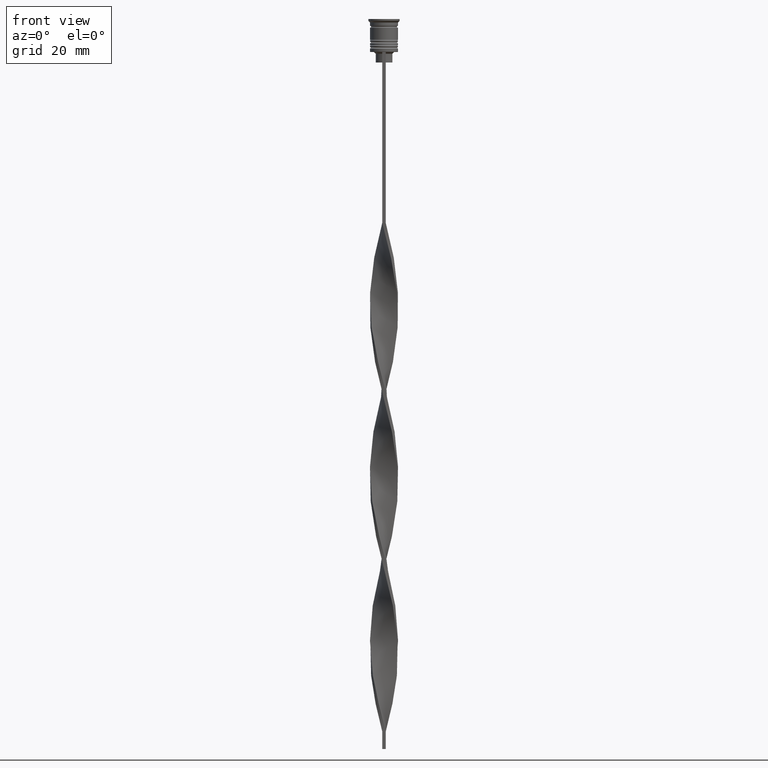
[diagram: clean part render]
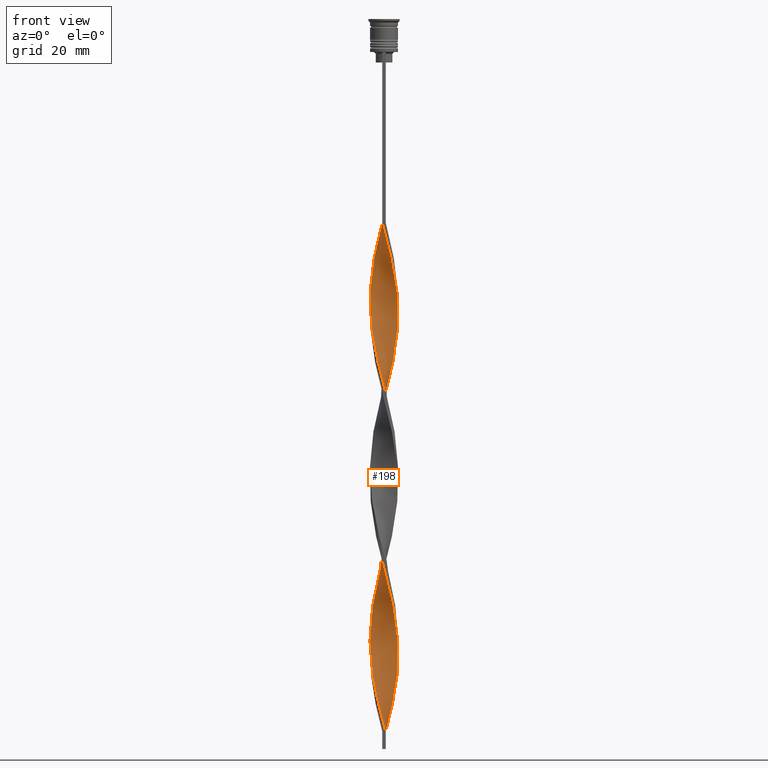
[diagram: same view with one face highlighted and labeled with its STEP entity id]
A machine part, front view. The second image highlights one B-rep face of the part: STEP entity #198.
In plain terms, the highlighted face is a freeform B-spline surface patch.
Its self-contained STEP definition (entity closure, byte-faithful):
#1 =( BOUNDED_CURVE ( )  B_SPLINE_CURVE ( 2, ( #1015, #1078, #424, #3131, #3742, #754, #3422, #1360, #2228, #3109, #780, #3500, #999, #379, #1639, #1041, #2531, #3458, #1970, #1655, #86, #3723, #405, #439, #121, #2849, #2569, #1621, #1598, #2213, #1380, #2832, #723, #2870, #106, #739, #1321, #3443, #145, #3764, #1953, #1336, #2586, #1935, #3785, #3150, #2248, #2546, #3170, #1056, #162, #2266, #3477, #3189, #3804, #465, #1680, #2890, #2287, #1765, #3247, #242, #1447, #1484, #2649, #1703, #1163, #2631, #3228, #182, #2378, #3276, #2332, #3540, #2977, #816, #2061, #3866, #554, #2695, #2079, #3522, #1400, #1461, #203, #3211, #1137, #228, #572, #2349, #3561, #485, #3848, #1750, #1426, #841, #2913, #2015, #2670, #3883, #1118, #798, #2036 ),
 .UNSPECIFIED., .F., .T. ) 
 B_SPLINE_CURVE_WITH_KNOTS ( ( 3, 2, 2, 2, 2, 2, 2, 2, 2, 2, 2, 2, 2, 2, 2, 2, 2, 2, 2, 2, 2, 2, 2, 2, 2, 2, 2, 2, 2, 2, 2, 2, 2, 2, 2, 2, 2, 2, 2, 2, 2, 2, 2, 2, 2, 2, 2, 2, 2, 2, 2, 3 ),
 ( 0.000000000000000000, 0.01470588235294117453, 0.02941176470588234906, 0.04411764705882353227, 0.05882352941176469813, 0.07352941176470588480, 0.08823529411764706454, 0.1029411764705882443, 0.1176470588235293963, 0.1323529411764705899, 0.1470588235294117696, 0.1617647058823529493, 0.1764705882352941291, 0.1911764705882352811, 0.2058823529411764885, 0.2205882352941176405, 0.2352941176470587925, 0.2500000000000000000, 0.2647058823529411797, 0.2794117647058823595, 0.2941176470588235392, 0.3088235294117647189, 0.3235294117647058987, 0.3382352941176470229, 0.3529411764705882582, 0.3676470588235294379, 0.3823529411764705621, 0.3970588235294117418, 0.4117647058823529771, 0.4264705882352941013, 0.4411764705882352811, 0.4558823529411764608, 0.4705882352941175850, 0.4852941176470588203, 0.5000000000000000000, 0.5147058823529411242, 0.5294117647058823595, 0.5441176470588234837, 0.5588235294117647189, 0.5735294117647058432, 0.5882352941176470784, 0.6029411764705882026, 0.6176470588235294379, 0.6323529411764705621, 0.6470588235294117974, 0.6617647058823529216, 0.6764705882352940458, 0.6911764705882351700, 0.7058823529411765163, 0.7205882352941176405, 0.7352941176470588758, 0.7500000000000000000 ),
 .UNSPECIFIED. ) 
 CURVE ( )  GEOMETRIC_REPRESENTATION_ITEM ( )  RATIONAL_B_SPLINE_CURVE ( ( 1.000000000000000000, 0.9957341762950344677, 1.000000000000000000, 0.9957341762950344677, 1.000000000000000000, 0.9957341762950344677, 1.000000000000000000, 0.9957341762950344677, 1.000000000000000000, 0.9957341762950344677, 1.000000000000000000, 0.9957341762950344677, 1.000000000000000000, 0.9957341762950344677, 1.000000000000000000, 0.9957341762950344677, 1.000000000000000000, 0.9957341762950344677, 1.000000000000000000, 0.9957341762950344677, 1.000000000000000000, 0.9957341762950344677, 1.000000000000000000, 0.9957341762950344677, 1.000000000000000000, 0.9957341762950344677, 1.000000000000000000, 0.9957341762950344677, 1.000000000000000000, 0.9957341762950344677, 1.000000000000000000, 0.9957341762950344677, 1.000000000000000000, 0.9957341762950344677, 1.000000000000000000, 0.9957341762950344677, 1.000000000000000000, 0.9957341762950344677, 1.000000000000000000, 0.9957341762950344677, 1.000000000000000000, 0.9957341762950344677, 1.000000000000000000, 0.9957341762950344677, 1.000000000000000000, 0.9957341762950344677, 1.000000000000000000, 0.9957341762950344677, 1.000000000000000000, 0.9957341762950344677, 1.000000000000000000, 0.9957341762950344677, 1.000000000000000000, 0.9957341762950344677, 1.000000000000000000, 0.9957341762950344677, 1.000000000000000000, 0.9957341762950344677, 1.000000000000000000, 0.9957341762950344677, 1.000000000000000000, 0.9957341762950344677, 1.000000000000000000, 0.9957341762950344677, 1.000000000000000000, 0.9957341762950344677, 1.000000000000000000, 0.9957341762950344677, 1.000000000000000000, 0.9957341762950344677, 1.000000000000000000, 0.9957341762950344677, 1.000000000000000000, 0.9957341762950344677, 1.000000000000000000, 0.9957341762950344677, 1.000000000000000000, 0.9957341762950344677, 1.000000000000000000, 0.9957341762950344677, 1.000000000000000000, 0.9957341762950344677, 1.000000000000000000, 0.9957341762950344677, 1.000000000000000000, 0.9957341762950344677, 1.000000000000000000, 0.9957341762950344677, 1.000000000000000000, 0.9957341762950344677, 1.000000000000000000, 0.9957341762950344677, 1.000000000000000000, 0.9957341762950344677, 1.000000000000000000, 0.9957341762950344677, 1.000000000000000000, 0.9957341762950344677, 1.000000000000000000, 0.9957341762950344677, 1.000000000000000000, 0.9957341762950344677, 1.000000000000000000 ) ) 
 REPRESENTATION_ITEM ( '' )  );
#18 = CARTESIAN_POINT ( 'NONE',  ( 3.927262761293755400, 0.9829235285346250572, -185.8921568627451109 ) ) ;
#39 = CARTESIAN_POINT ( 'NONE',  ( -2.630408706874893365, 3.077414741952791299, -120.0490196078431353 ) ) ;
#56 = CARTESIAN_POINT ( 'NONE',  ( 3.306990529297891168, 2.335239837431193788, -94.28431372549020750 ) ) ;
#77 = CARTESIAN_POINT ( 'NONE',  ( -2.890751590931329496, 2.809547159157145924, -121.4803921568627345 ) ) ;
#83 = ORIENTED_EDGE ( 'NONE', *, *, #2900, .T. ) ;
#86 = CARTESIAN_POINT ( 'NONE',  ( -3.710471077655235206, -1.575564781874741138, -87.12745098039215463 ) ) ;
#97 = CARTESIAN_POINT ( 'NONE',  ( -0.2435115214243295800, 4.023767157643892034, -110.0294117647058698 ) ) ;
#98 = CARTESIAN_POINT ( 'NONE',  ( 4.041005374160881125, -0.2445547488692170757, -128.6372549019607447 ) ) ;
#103 = CARTESIAN_POINT ( 'NONE',  ( 4.017136395662697979, 0.5021420494578364702, -131.5000000000000000 ) ) ;
#106 = CARTESIAN_POINT ( 'NONE',  ( 0.4999999999999994449, -4.000000000000000000, -107.1666666666666572 ) ) ;
#107 = CARTESIAN_POINT ( 'NONE',  ( 2.020147525076906980, -3.508352239459040067, -68.51960784313725128 ) ) ;
#116 = CARTESIAN_POINT ( 'NONE',  ( -3.710471077655234762, 1.575564781874742026, -127.2058823529411740 ) ) ;
#121 = CARTESIAN_POINT ( 'NONE',  ( -2.890751590931330384, -2.809547159157145035, -92.85294117647057988 ) ) ;
#122 = B_SPLINE_CURVE_WITH_KNOTS ( 'NONE', 3,
 ( #3191, #1954, #1998, #163 ),
 .UNSPECIFIED., .F., .F.,
 ( 4, 4 ),
 ( 0.000000000000000000, 1.000000000000000000 ),
 .UNSPECIFIED. ) ;
#134 = CARTESIAN_POINT ( 'NONE',  ( -3.679781925323283076, -1.687820026322619293, -140.0882352941176237 ) ) ;
#138 = CARTESIAN_POINT ( 'NONE',  ( 2.890751590931329940, -2.809547159157145479, -170.1470588235293917 ) ) ;
#145 = CARTESIAN_POINT ( 'NONE',  ( 1.911202779450790201, -3.549268084523846234, -112.8921568627450966 ) ) ;
#161 = CARTESIAN_POINT ( 'NONE',  ( 3.064287033196559040, 2.619187847059357477, -193.0490196078431211 ) ) ;
#162 = CARTESIAN_POINT ( 'NONE',  ( 4.029070884911789996, 0.1287936502943096417, -130.0686274509803866 ) ) ;
#163 = CARTESIAN_POINT ( 'NONE',  ( 0.4999999999999994449, -4.000000000000000000, -204.5000000000000000 ) ) ;
#165 = CARTESIAN_POINT ( 'NONE',  ( -2.890751590931330384, -2.809547159157145035, -190.1862745098039227 ) ) ;
#172 = CARTESIAN_POINT ( 'NONE',  ( 2.630408706874893365, -3.077414741952792188, -71.38235294117646390 ) ) ;
#173 = CARTESIAN_POINT ( 'NONE',  ( 3.306990529297891612, -2.335239837431193344, -120.0490196078431211 ) ) ;
#181 = CARTESIAN_POINT ( 'NONE',  ( -4.041005374160881125, 0.2445547488692185190, -79.97058823529411598 ) ) ;
#182 = CARTESIAN_POINT ( 'NONE',  ( -0.8706545849681190941, 3.953668176878985197, -157.2647058823529278 ) ) ;
#187 = CARTESIAN_POINT ( 'NONE',  ( -3.493386227310586012, 2.011529931876905763, -170.1470588235293917 ) ) ;
#198 = ADVANCED_FACE ( 'NONE', ( #3532 ), #2146, .T. ) ;
#202 = CARTESIAN_POINT ( 'NONE',  ( 2.530837219374230340, 3.137652461479778943, -195.9117647058823479 ) ) ;
#203 = CARTESIAN_POINT ( 'NONE',  ( -4.029070884911789108, -0.1287936502943091699, -178.7352941176470438 ) ) ;
#218 = CARTESIAN_POINT ( 'NONE',  ( 3.564473500076194235, -1.919390561205869261, -77.10784313725490335 ) ) ;
#219 = CARTESIAN_POINT ( 'NONE',  ( 1.582314657248345080, -3.726367102775659745, -111.4607843137254974 ) ) ;
#228 = CARTESIAN_POINT ( 'NONE',  ( -3.856468655234277065, -1.231739002543613681, -183.0294117647059124 ) ) ;
#239 = CARTESIAN_POINT ( 'NONE',  ( -0.6163684578805417313, 4.001202492166770597, -111.4607843137254974 ) ) ;
#242 = CARTESIAN_POINT ( 'NONE',  ( 2.020147525076907424, 3.508352239459039623, -145.8137254901960489 ) ) ;
#257 = CARTESIAN_POINT ( 'NONE',  ( 2.020147525076906980, -3.508352239459040067, -165.8529411764705799 ) ) ;
#281 = CARTESIAN_POINT ( 'NONE',  ( -3.306990529297890280, -2.335239837431195120, -142.9509803921568789 ) ) ;
#286 = CARTESIAN_POINT ( 'NONE',  ( 2.325278115975899507, -3.292883490705915239, -167.2843137254901933 ) ) ;
#300 = CARTESIAN_POINT ( 'NONE',  ( -0.1293454150318809337, -4.046331823121015248, -157.2647058823529278 ) ) ;
#316 = CARTESIAN_POINT ( 'NONE',  ( 3.357783987531980152, -2.230535068783684682, -173.0098039215686185 ) ) ;
#360 = CARTESIAN_POINT ( 'NONE',  ( 3.984134067727318040, 0.6137391387019219824, -87.12745098039215463 ) ) ;
#379 = CARTESIAN_POINT ( 'NONE',  ( -3.927262761293755400, 0.9829235285346255013, -77.10784313725490335 ) ) ;
#396 = CARTESIAN_POINT ( 'NONE',  ( 3.927262761293754956, 0.9829235285346250572, -88.55882352941175384 ) ) ;
#401 = CARTESIAN_POINT ( 'NONE',  ( 2.325278115975899063, 3.292883490705915683, -144.3823529411764639 ) ) ;
#405 = CARTESIAN_POINT ( 'NONE',  ( -3.357783987531980152, -2.230535068783684238, -89.99019607843136725 ) ) ;
#416 = CARTESIAN_POINT ( 'NONE',  ( 3.803522343308519016, 1.335371777428621565, -89.99019607843136725 ) ) ;
#424 = CARTESIAN_POINT ( 'NONE',  ( -1.226484621108232309, 3.840017639827321805, -61.36274509803921262 ) ) ;
#431 = CARTESIAN_POINT ( 'NONE',  ( 0.4999999999999994449, -4.000000000000000000, -204.5000000000000000 ) ) ;
#439 = CARTESIAN_POINT ( 'NONE',  ( -3.151094474987766958, -2.541679576361500548, -91.42156862745098067 ) ) ;
#451 = CARTESIAN_POINT ( 'NONE',  ( 4.017136395662697979, -0.5021420494578374694, -82.83333333333332860 ) ) ;
#459 = CARTESIAN_POINT ( 'NONE',  ( -0.1293454150318810725, 4.046331823121016136, -154.4019607843137294 ) ) ;
#465 = CARTESIAN_POINT ( 'NONE',  ( 3.564473500076194679, 1.919390561205867707, -137.2254901960784537 ) ) ;
#477 = CARTESIAN_POINT ( 'NONE',  ( 1.911202779450790201, -3.549268084523846234, -112.8921568627450966 ) ) ;
#481 = CARTESIAN_POINT ( 'NONE',  ( -0.2435115214243295800, 4.023767157643892034, -110.0294117647058698 ) ) ;
#484 = CARTESIAN_POINT ( 'NONE',  ( -4.029070884911789108, -0.1287936502943091699, -81.40196078431371518 ) ) ;
#485 = CARTESIAN_POINT ( 'NONE',  ( -3.151094474987766958, -2.541679576361500548, -188.7549019607843093 ) ) ;
#490 = CARTESIAN_POINT ( 'NONE',  ( -3.064287033196558596, 2.619187847059357921, -167.2843137254901933 ) ) ;
#503 = CARTESIAN_POINT ( 'NONE',  ( 4.017136395662697979, -0.5021420494578374694, -180.1666666666666288 ) ) ;
#517 = CARTESIAN_POINT ( 'NONE',  ( 1.341092642212326380, -3.819817009255230822, -65.65686274509803866 ) ) ;
#518 = CARTESIAN_POINT ( 'NONE',  ( -0.6163684578805426195, -4.001202492166771485, -102.8725490196078312 ) ) ;
#524 = CARTESIAN_POINT ( 'NONE',  ( 1.680620083644616125, -3.664084624357134778, -67.08823529411763786 ) ) ;
#548 = CARTESIAN_POINT ( 'NONE',  ( 1.226484621108232531, 3.840017639827321805, -104.3039215686274446 ) ) ;
#553 = CARTESIAN_POINT ( 'NONE',  ( -1.582314657248345080, 3.726367102775659745, -62.79411764705881893 ) ) ;
#554 = CARTESIAN_POINT ( 'NONE',  ( -3.493386227310586012, 2.011529931876905763, -170.1470588235293917 ) ) ;
#565 = CARTESIAN_POINT ( 'NONE',  ( -4.029070884911789996, 0.1287936502943111128, -132.9313725490196134 ) ) ;
#571 = CARTESIAN_POINT ( 'NONE',  ( -2.821583537095227356, 2.903135856687522942, -68.51960784313723707 ) ) ;
#572 = CARTESIAN_POINT ( 'NONE',  ( -3.710471077655235206, -1.575564781874741138, -184.4607843137254690 ) ) ;
#583 = CARTESIAN_POINT ( 'NONE',  ( 1.226484621108232531, 3.840017639827321805, -201.6372549019607732 ) ) ;
#587 = CARTESIAN_POINT ( 'NONE',  ( -1.911202779450789979, -3.549268084523846678, -150.1078431372548891 ) ) ;
#604 = CARTESIAN_POINT ( 'NONE',  ( 3.064287033196559040, 2.619187847059357477, -193.0490196078431211 ) ) ;
#607 = CARTESIAN_POINT ( 'NONE',  ( -0.5000000000000000000, -4.000000000000000000, -155.8333333333333144 ) ) ;
#624 = CARTESIAN_POINT ( 'NONE',  ( 3.936802525448486634, -0.8669405260007252423, -178.7352941176470438 ) ) ;
#639 = CARTESIAN_POINT ( 'NONE',  ( 1.582314657248345968, 3.726367102775659301, -200.2058823529411882 ) ) ;
#642 = EDGE_CURVE ( 'NONE', #3236, #2561, #2263, .T. ) ;
#647 = LINE ( 'NONE', #1861, #1600 ) ;
#681 = CARTESIAN_POINT ( 'NONE',  ( 1.226484621108232531, 3.840017639827321805, -104.3039215686274446 ) ) ;
#701 = CARTESIAN_POINT ( 'NONE',  ( -2.020147525076906092, 3.508352239459040067, -117.1862745098039227 ) ) ;
#720 = CARTESIAN_POINT ( 'NONE',  ( 0.2435115214243293580, 4.023767157643892034, -152.9705882352941160 ) ) ;
#723 = CARTESIAN_POINT ( 'NONE',  ( -0.2435115214243305515, -4.023767157643892034, -104.3039215686274446 ) ) ;
#733 = CARTESIAN_POINT ( 'NONE',  ( -4.041005374160881125, -0.2445547488692193794, -134.3627450980391984 ) ) ;
#739 = CARTESIAN_POINT ( 'NONE',  ( 0.8706545849681194271, -3.953668176878985197, -108.5980392156862706 ) ) ;
#748 = CARTESIAN_POINT ( 'NONE',  ( -2.630408706874893809, 3.077414741952791744, -120.0490196078431211 ) ) ;
#754 = CARTESIAN_POINT ( 'NONE',  ( -2.240090901653234656, 3.372169066272035387, -65.65686274509803866 ) ) ;
#767 = CARTESIAN_POINT ( 'NONE',  ( 1.226484621108231421, -3.840017639827321805, -110.0294117647058698 ) ) ;
#772 = CARTESIAN_POINT ( 'NONE',  ( 2.240090901653235100, 3.372169066272034499, -100.0098039215686327 ) ) ;
#779 = CARTESIAN_POINT ( 'NONE',  ( -3.306990529297891168, 2.335239837431193788, -71.38235294117646390 ) ) ;
#780 = CARTESIAN_POINT ( 'NONE',  ( -3.493386227310586012, 2.011529931876905763, -72.81372549019607732 ) ) ;
#786 = CARTESIAN_POINT ( 'NONE',  ( -3.306990529297891168, 2.335239837431193788, -168.7156862745097783 ) ) ;
#794 = CARTESIAN_POINT ( 'NONE',  ( 3.064287033196559040, 2.619187847059357477, -95.71568627450979250 ) ) ;
#797 = CARTESIAN_POINT ( 'NONE',  ( 3.493386227310586456, 2.011529931876905319, -190.1862745098039227 ) ) ;
#798 = CARTESIAN_POINT ( 'NONE',  ( 0.1293454150318815721, -4.046331823121016136, -203.0686274509803582 ) ) ;
#812 = CARTESIAN_POINT ( 'NONE',  ( 4.017136395662697979, -0.5021420494578374694, -82.83333333333332860 ) ) ;
#815 = CARTESIAN_POINT ( 'NONE',  ( 3.679781925323283076, 1.687820026322619738, -188.7549019607843093 ) ) ;
#816 = CARTESIAN_POINT ( 'NONE',  ( -2.821583537095227356, 2.903135856687522942, -165.8529411764705799 ) ) ;
#827 = CARTESIAN_POINT ( 'NONE',  ( 0.8706545849681194271, -3.953668176878984752, -108.5980392156862706 ) ) ;
#832 = CARTESIAN_POINT ( 'NONE',  ( 1.341092642212326380, -3.819817009255230822, -65.65686274509803866 ) ) ;
#839 = CARTESIAN_POINT ( 'NONE',  ( 0.5000000000000005551, 4.000000000000000000, -204.5000000000000000 ) ) ;
#841 = CARTESIAN_POINT ( 'NONE',  ( -2.020147525076906980, -3.508352239459040067, -194.4803921568627629 ) ) ;
#854 = CARTESIAN_POINT ( 'NONE',  ( 3.803522343308519016, -1.335371777428620899, -124.3431372549019471 ) ) ;
#858 = CARTESIAN_POINT ( 'NONE',  ( -2.821583537095227356, -2.903135856687522498, -145.8137254901960489 ) ) ;
#873 = CARTESIAN_POINT ( 'NONE',  ( 3.493386227310586456, 2.011529931876905319, -190.1862745098039227 ) ) ;
#891 = CARTESIAN_POINT ( 'NONE',  ( -2.890751590931329496, 2.809547159157145924, -121.4803921568627345 ) ) ;
#915 = CARTESIAN_POINT ( 'NONE',  ( -2.240090901653234212, -3.372169066272035831, -148.6764705882353326 ) ) ;
#934 = CARTESIAN_POINT ( 'NONE',  ( 2.530837219374230340, 3.137652461479778943, -195.9117647058823479 ) ) ;
#975 = CARTESIAN_POINT ( 'NONE',  ( 1.911202779450789535, 3.549268084523846678, -101.4411764705882320 ) ) ;
#991 = CARTESIAN_POINT ( 'NONE',  ( -3.803522343308518572, -1.335371777428622897, -138.6568627450980387 ) ) ;
#995 = CARTESIAN_POINT ( 'NONE',  ( 1.680620083644617901, 3.664084624357133446, -147.2450980392156907 ) ) ;
#999 = CARTESIAN_POINT ( 'NONE',  ( -3.803522343308519016, 1.335371777428622009, -75.67647058823528994 ) ) ;
#1008 = CARTESIAN_POINT ( 'NONE',  ( -3.357783987531981040, 2.230535068783683350, -124.3431372549019471 ) ) ;
#1011 = CARTESIAN_POINT ( 'NONE',  ( -2.240090901653235100, 3.372169066272035387, -162.9901960784313815 ) ) ;
#1015 = CARTESIAN_POINT ( 'NONE',  ( -0.5000000000000000000, 4.000000000000000000, -58.50000000000000000 ) ) ;
#1016 = CARTESIAN_POINT ( 'NONE',  ( 2.530837219374230340, 3.137652461479778943, -98.57843137254901933 ) ) ;
#1036 = CARTESIAN_POINT ( 'NONE',  ( 2.890751590931330828, 2.809547159157144591, -141.5196078431372371 ) ) ;
#1041 = CARTESIAN_POINT ( 'NONE',  ( -4.041005374160881125, 0.2445547488692184912, -79.97058823529411598 ) ) ;
#1050 = CARTESIAN_POINT ( 'NONE',  ( -2.821583537095227356, -2.903135856687522498, -145.8137254901960489 ) ) ;
#1056 = CARTESIAN_POINT ( 'NONE',  ( 4.041005374160881125, -0.2445547488692170757, -128.6372549019607732 ) ) ;
#1061 = CARTESIAN_POINT ( 'NONE',  ( -3.710471077655235206, -1.575564781874741138, -184.4607843137254690 ) ) ;
#1074 = VERTEX_POINT ( 'NONE', #2885 ) ;
#1078 = CARTESIAN_POINT ( 'NONE',  ( -0.8706545849681190941, 3.953668176878985197, -59.93137254901961342 ) ) ;
#1082 = CARTESIAN_POINT ( 'NONE',  ( -4.017136395662697979, -0.5021420494578370253, -180.1666666666666288 ) ) ;
#1094 = CARTESIAN_POINT ( 'NONE',  ( 3.151094474987766958, -2.541679576361500104, -74.24509803921567652 ) ) ;
#1099 = CARTESIAN_POINT ( 'NONE',  ( 3.564473500076194235, -1.919390561205869261, -174.4411764705882320 ) ) ;
#1118 = CARTESIAN_POINT ( 'NONE',  ( -0.2435115214243305515, -4.023767157643892034, -201.6372549019607732 ) ) ;
#1132 = CARTESIAN_POINT ( 'NONE',  ( 0.2435115214243304405, -4.023767157643892034, -61.36274509803921262 ) ) ;
#1136 = CARTESIAN_POINT ( 'NONE',  ( -1.226484621108232309, 3.840017639827321805, -61.36274509803921262 ) ) ;
#1137 = CARTESIAN_POINT ( 'NONE',  ( -3.936802525448487522, -0.8669405260007247982, -181.5980392156862706 ) ) ;
#1149 = CARTESIAN_POINT ( 'NONE',  ( 2.821583537095226468, -2.903135856687523830, -117.1862745098039369 ) ) ;
#1154 = CARTESIAN_POINT ( 'NONE',  ( -1.680620083644616569, 3.664084624357134334, -115.7549019607843093 ) ) ;
#1161 = CARTESIAN_POINT ( 'NONE',  ( 4.041005374160881125, 0.2445547488692189630, -183.0294117647059124 ) ) ;
#1163 = CARTESIAN_POINT ( 'NONE',  ( 0.2435115214243293580, 4.023767157643892034, -152.9705882352941160 ) ) ;
#1180 = CARTESIAN_POINT ( 'NONE',  ( 1.341092642212326380, -3.819817009255230822, -162.9901960784313530 ) ) ;
#1197 = CARTESIAN_POINT ( 'NONE',  ( -2.530837219374231672, -3.137652461479777610, -147.2450980392156907 ) ) ;
#1203 = CARTESIAN_POINT ( 'NONE',  ( 2.020147525076906536, -3.508352239459040067, -165.8529411764705799 ) ) ;
#1216 = CARTESIAN_POINT ( 'NONE',  ( -1.582314657248346412, -3.726367102775658413, -151.5392156862744741 ) ) ;
#1222 = CARTESIAN_POINT ( 'NONE',  ( -0.8706545849681190941, -3.953668176878985641, -154.4019607843137294 ) ) ;
#1244 = CARTESIAN_POINT ( 'NONE',  ( -3.710471077655234762, 1.575564781874742026, -127.2058823529411740 ) ) ;
#1262 = CARTESIAN_POINT ( 'NONE',  ( -3.803522343308518572, -1.335371777428622897, -138.6568627450980387 ) ) ;
#1296 = EDGE_CURVE ( 'NONE', #3236, #1074, #647, .T. ) ;
#1315 = CARTESIAN_POINT ( 'NONE',  ( -1.680620083644616569, 3.664084624357134334, -115.7549019607843093 ) ) ;
#1321 = CARTESIAN_POINT ( 'NONE',  ( 1.226484621108231421, -3.840017639827321805, -110.0294117647058698 ) ) ;
#1323 = CARTESIAN_POINT ( 'NONE',  ( 3.710471077655235206, -1.575564781874740694, -78.53921568627450256 ) ) ;
#1330 = CARTESIAN_POINT ( 'NONE',  ( -4.017136395662697979, 0.5021420494578380245, -131.5000000000000000 ) ) ;
#1336 = CARTESIAN_POINT ( 'NONE',  ( 2.821583537095226468, -2.903135856687523830, -117.1862745098039227 ) ) ;
#1346 = EDGE_LOOP ( 'NONE', ( #1559, #83, #1529, #1520 ) ) ;
#1352 = CARTESIAN_POINT ( 'NONE',  ( 4.041005374160881125, 0.2445547488692189630, -85.69607843137254122 ) ) ;
#1357 = CARTESIAN_POINT ( 'NONE',  ( 3.936802525448487522, 0.8669405260007234659, -132.9313725490196134 ) ) ;
#1360 = CARTESIAN_POINT ( 'NONE',  ( -2.821583537095227356, 2.903135856687522942, -68.51960784313725128 ) ) ;
#1376 = CARTESIAN_POINT ( 'NONE',  ( 0.9787305500464340557, 3.910509750710999821, -150.1078431372548891 ) ) ;
#1379 = CARTESIAN_POINT ( 'NONE',  ( 1.226484621108232531, 3.840017639827321805, -201.6372549019607732 ) ) ;
#1380 = CARTESIAN_POINT ( 'NONE',  ( -0.9787305500464337227, -3.910509750710999821, -101.4411764705882320 ) ) ;
#1391 = CARTESIAN_POINT ( 'NONE',  ( 3.493386227310585568, -2.011529931876906208, -121.4803921568627345 ) ) ;
#1399 = CARTESIAN_POINT ( 'NONE',  ( -4.017136395662697979, -0.5021420494578370253, -82.83333333333332860 ) ) ;
#1400 = CARTESIAN_POINT ( 'NONE',  ( -3.984134067727318040, 0.6137391387019215383, -175.8725490196078454 ) ) ;
#1402 = CARTESIAN_POINT ( 'NONE',  ( -2.325278115975899951, -3.292883490705914795, -193.0490196078431211 ) ) ;
#1404 = CARTESIAN_POINT ( 'NONE',  ( -3.984134067727318040, 0.6137391387019215383, -175.8725490196078454 ) ) ;
#1410 = CARTESIAN_POINT ( 'NONE',  ( 3.151094474987767402, -2.541679576361500104, -74.24509803921567652 ) ) ;
#1415 = CARTESIAN_POINT ( 'NONE',  ( 3.357783987531980152, -2.230535068783684682, -173.0098039215686185 ) ) ;
#1426 = CARTESIAN_POINT ( 'NONE',  ( -2.325278115975899951, -3.292883490705914795, -193.0490196078431211 ) ) ;
#1431 = CARTESIAN_POINT ( 'NONE',  ( -0.6163684578805426195, -4.001202492166771485, -200.2058823529411598 ) ) ;
#1438 = CARTESIAN_POINT ( 'NONE',  ( 3.710471077655235206, -1.575564781874740694, -78.53921568627450256 ) ) ;
#1442 = CARTESIAN_POINT ( 'NONE',  ( 2.630408706874892921, -3.077414741952791744, -71.38235294117646390 ) ) ;
#1446 = CARTESIAN_POINT ( 'NONE',  ( -0.5000000000000000000, 4.000000000000000000, -58.50000000000000000 ) ) ;
#1447 = CARTESIAN_POINT ( 'NONE',  ( 1.680620083644617901, 3.664084624357133446, -147.2450980392156907 ) ) ;
#1457 = CARTESIAN_POINT ( 'NONE',  ( -0.9787305500464342778, 3.910509750710998933, -112.8921568627450966 ) ) ;
#1461 = CARTESIAN_POINT ( 'NONE',  ( -4.041005374160881125, 0.2445547488692184912, -177.3039215686274588 ) ) ;
#1475 = CARTESIAN_POINT ( 'NONE',  ( 0.6163684578805417313, -4.001202492166770597, -160.1274509803921831 ) ) ;
#1484 = CARTESIAN_POINT ( 'NONE',  ( 1.341092642212325714, 3.819817009255231266, -148.6764705882353326 ) ) ;
#1500 = CARTESIAN_POINT ( 'NONE',  ( 3.984134067727318040, 0.6137391387019219824, -184.4607843137254690 ) ) ;
#1505 = CARTESIAN_POINT ( 'NONE',  ( 2.630408706874893365, -3.077414741952792188, -168.7156862745097783 ) ) ;
#1517 = CARTESIAN_POINT ( 'NONE',  ( -3.151094474987766514, 2.541679576361500992, -122.9117647058823621 ) ) ;
#1520 = ORIENTED_EDGE ( 'NONE', *, *, #642, .F. ) ;
#1529 = ORIENTED_EDGE ( 'NONE', *, *, #2253, .F. ) ;
#1537 = CARTESIAN_POINT ( 'NONE',  ( 4.017136395662697979, -0.5021420494578374694, -180.1666666666666288 ) ) ;
#1559 = ORIENTED_EDGE ( 'NONE', *, *, #1296, .T. ) ;
#1576 = CARTESIAN_POINT ( 'NONE',  ( -3.493386227310586900, -2.011529931876904875, -141.5196078431372371 ) ) ;
#1590 = CARTESIAN_POINT ( 'NONE',  ( -0.9787305500464342778, 3.910509750710998933, -112.8921568627450966 ) ) ;
#1598 = CARTESIAN_POINT ( 'NONE',  ( -1.680620083644616125, -3.664084624357134778, -98.57843137254901933 ) ) ;
#1600 = VECTOR ( 'NONE', #3645, 1000.000000000000000 ) ;
#1612 = CARTESIAN_POINT ( 'NONE',  ( 0.8706545849681186500, 3.953668176878985641, -105.7352941176470722 ) ) ;
#1617 = CARTESIAN_POINT ( 'NONE',  ( -0.5000000000000000000, 4.000000000000000000, -155.8333333333333144 ) ) ;
#1621 = CARTESIAN_POINT ( 'NONE',  ( -2.020147525076906980, -3.508352239459040067, -97.14705882352940591 ) ) ;
#1633 = CARTESIAN_POINT ( 'NONE',  ( 2.821583537095227356, 2.903135856687522942, -97.14705882352939170 ) ) ;
#1639 = CARTESIAN_POINT ( 'NONE',  ( -3.984134067727318040, 0.6137391387019215383, -78.53921568627450256 ) ) ;
#1655 = CARTESIAN_POINT ( 'NONE',  ( -3.856468655234277065, -1.231739002543613681, -85.69607843137254122 ) ) ;
#1680 = CARTESIAN_POINT ( 'NONE',  ( 3.357783987531979708, 2.230535068783685571, -138.6568627450980387 ) ) ;
#1684 = CARTESIAN_POINT ( 'NONE',  ( -1.680620083644616125, -3.664084624357134778, -195.9117647058823479 ) ) ;
#1687 = CARTESIAN_POINT ( 'NONE',  ( -3.856468655234276621, -1.231739002543613681, -183.0294117647059124 ) ) ;
#1694 = CARTESIAN_POINT ( 'NONE',  ( -0.5000000000000000000, -4.000000000000000000, -58.50000000000000000 ) ) ;
#1695 = CARTESIAN_POINT ( 'NONE',  ( -3.357783987531980152, -2.230535068783684238, -89.99019607843136725 ) ) ;
#1702 = CARTESIAN_POINT ( 'NONE',  ( 3.306990529297891168, 2.335239837431193788, -191.6176470588235077 ) ) ;
#1703 = CARTESIAN_POINT ( 'NONE',  ( 0.6163684578805429526, 4.001202492166770597, -151.5392156862744741 ) ) ;
#1708 = CARTESIAN_POINT ( 'NONE',  ( -3.151094474987767402, -2.541679576361500548, -188.7549019607843093 ) ) ;
#1714 = CARTESIAN_POINT ( 'NONE',  ( -2.890751590931330384, -2.809547159157145035, -92.85294117647057988 ) ) ;
#1718 = CARTESIAN_POINT ( 'NONE',  ( 3.306990529297890724, 2.335239837431193788, -94.28431372549020750 ) ) ;
#1723 = CARTESIAN_POINT ( 'NONE',  ( 3.803522343308519016, 1.335371777428621565, -187.3235294117646959 ) ) ;
#1727 = CARTESIAN_POINT ( 'NONE',  ( -0.9787305500464337227, -3.910509750710999821, -198.7745098039215463 ) ) ;
#1738 = CARTESIAN_POINT ( 'NONE',  ( 0.1293454150318815721, -4.046331823121016136, -105.7352941176470722 ) ) ;
#1744 = CARTESIAN_POINT ( 'NONE',  ( 3.927262761293755400, 0.9829235285346250572, -88.55882352941175384 ) ) ;
#1750 = CARTESIAN_POINT ( 'NONE',  ( -2.630408706874892921, -3.077414741952791744, -191.6176470588235077 ) ) ;
#1756 = CARTESIAN_POINT ( 'NONE',  ( 2.530837219374230784, -3.137652461479778498, -115.7549019607843093 ) ) ;
#1761 = CARTESIAN_POINT ( 'NONE',  ( 0.8706545849681186500, 3.953668176878986085, -105.7352941176470722 ) ) ;
#1765 = CARTESIAN_POINT ( 'NONE',  ( 2.630408706874892033, 3.077414741952792188, -142.9509803921568789 ) ) ;
#1778 = CARTESIAN_POINT ( 'NONE',  ( -1.911202779450789979, -3.549268084523846678, -150.1078431372548891 ) ) ;
#1782 = CARTESIAN_POINT ( 'NONE',  ( -3.679781925323283076, 1.687820026322619293, -74.24509803921567652 ) ) ;
#1799 = CARTESIAN_POINT ( 'NONE',  ( 0.8706545849681186500, 3.953668176878986085, -203.0686274509803582 ) ) ;
#1807 = CARTESIAN_POINT ( 'NONE',  ( -0.1293454150318809337, -4.046331823121015248, -157.2647058823529278 ) ) ;
#1823 = CARTESIAN_POINT ( 'NONE',  ( 1.911202779450789535, 3.549268084523846678, -198.7745098039215463 ) ) ;
#1840 = CARTESIAN_POINT ( 'NONE',  ( -3.984134067727318040, -0.6137391387019215383, -135.7941176470588118 ) ) ;
#1852 = CARTESIAN_POINT ( 'NONE',  ( 3.306990529297890724, 2.335239837431193788, -191.6176470588235077 ) ) ;
#1861 = CARTESIAN_POINT ( 'NONE',  ( -0.5000000000000000000, -4.000000000000000000, -58.50000000000000000 ) ) ;
#1909 = CARTESIAN_POINT ( 'NONE',  ( 3.710471077655235206, 1.575564781874740694, -135.7941176470588118 ) ) ;
#1914 = CARTESIAN_POINT ( 'NONE',  ( -2.325278115975899507, 3.292883490705915239, -118.6176470588235219 ) ) ;
#1928 = CARTESIAN_POINT ( 'NONE',  ( 2.240090901653235544, 3.372169066272034499, -100.0098039215686327 ) ) ;
#1932 = CARTESIAN_POINT ( 'NONE',  ( -2.530837219374230340, 3.137652461479778943, -164.4215686274509665 ) ) ;
#1935 = CARTESIAN_POINT ( 'NONE',  ( 3.306990529297891168, -2.335239837431193344, -120.0490196078431353 ) ) ;
#1946 = CARTESIAN_POINT ( 'NONE',  ( -3.984134067727318040, -0.6137391387019215383, -135.7941176470588118 ) ) ;
#1949 = CARTESIAN_POINT ( 'NONE',  ( 3.357783987531979708, 2.230535068783685571, -138.6568627450980387 ) ) ;
#1953 = CARTESIAN_POINT ( 'NONE',  ( 2.530837219374230784, -3.137652461479778498, -115.7549019607843093 ) ) ;
#1954 = CARTESIAN_POINT ( 'NONE',  ( 0.5000000000000002220, 1.333333333333333481, -204.5000000000000000 ) ) ;
#1956 = CARTESIAN_POINT ( 'NONE',  ( 0.1293454150318815721, -4.046331823121016136, -203.0686274509803582 ) ) ;
#1962 = CARTESIAN_POINT ( 'NONE',  ( 3.856468655234276621, -1.231739002543613237, -79.97058823529411598 ) ) ;
#1967 = CARTESIAN_POINT ( 'NONE',  ( 0.6163684578805430636, 4.001202492166771485, -151.5392156862744741 ) ) ;
#1970 = CARTESIAN_POINT ( 'NONE',  ( -3.936802525448487522, -0.8669405260007247982, -84.26470588235294201 ) ) ;
#1979 = CARTESIAN_POINT ( 'NONE',  ( -4.029070884911789108, -0.1287936502943091699, -178.7352941176470438 ) ) ;
#1992 = CARTESIAN_POINT ( 'NONE',  ( -0.5000000000000000000, -4.000000000000000000, -58.50000000000000000 ) ) ;
#1995 = CARTESIAN_POINT ( 'NONE',  ( -3.927262761293754956, 0.9829235285346253903, -77.10784313725490335 ) ) ;
#1998 = CARTESIAN_POINT ( 'NONE',  ( 0.4999999999999997780, -1.333333333333333481, -204.5000000000000000 ) ) ;
#2001 = CARTESIAN_POINT ( 'NONE',  ( -4.041005374160881125, 0.2445547488692185190, -177.3039215686274304 ) ) ;
#2007 = CARTESIAN_POINT ( 'NONE',  ( 1.680620083644616125, -3.664084624357134778, -67.08823529411763786 ) ) ;
#2014 = CARTESIAN_POINT ( 'NONE',  ( 2.821583537095227356, 2.903135856687522942, -194.4803921568627914 ) ) ;
#2015 = CARTESIAN_POINT ( 'NONE',  ( -1.341092642212326824, -3.819817009255229934, -197.3431372549019613 ) ) ;
#2019 = CARTESIAN_POINT ( 'NONE',  ( -2.020147525076906536, -3.508352239459040067, -194.4803921568627914 ) ) ;
#2028 = CARTESIAN_POINT ( 'NONE',  ( -2.630408706874893365, -3.077414741952792188, -94.28431372549020750 ) ) ;
#2032 = CARTESIAN_POINT ( 'NONE',  ( 0.6163684578805417313, -4.001202492166770597, -62.79411764705881893 ) ) ;
#2035 = CARTESIAN_POINT ( 'NONE',  ( 3.927262761293754956, 0.9829235285346250572, -185.8921568627451109 ) ) ;
#2036 = CARTESIAN_POINT ( 'NONE',  ( 0.4999999999999994449, -4.000000000000000000, -204.5000000000000000 ) ) ;
#2048 = CARTESIAN_POINT ( 'NONE',  ( -1.680620083644616125, -3.664084624357134778, -98.57843137254901933 ) ) ;
#2055 = CARTESIAN_POINT ( 'NONE',  ( 3.357783987531980152, -2.230535068783684682, -75.67647058823528994 ) ) ;
#2060 = CARTESIAN_POINT ( 'NONE',  ( 3.984134067727318040, 0.6137391387019219824, -184.4607843137254690 ) ) ;
#2061 = CARTESIAN_POINT ( 'NONE',  ( -3.064287033196558596, 2.619187847059357921, -167.2843137254901933 ) ) ;
#2073 = CARTESIAN_POINT ( 'NONE',  ( -3.493386227310586900, -2.011529931876904875, -141.5196078431372371 ) ) ;
#2078 = CARTESIAN_POINT ( 'NONE',  ( 3.936802525448486634, -0.8669405260007252423, -178.7352941176470438 ) ) ;
#2079 = CARTESIAN_POINT ( 'NONE',  ( -3.803522343308519016, 1.335371777428622009, -173.0098039215686185 ) ) ;
#2091 = CARTESIAN_POINT ( 'NONE',  ( 3.151094474987766958, -2.541679576361500104, -171.5784313725490620 ) ) ;
#2110 = CARTESIAN_POINT ( 'NONE',  ( -4.041005374160881125, -0.2445547488692193516, -134.3627450980391984 ) ) ;
#2116 = CARTESIAN_POINT ( 'NONE',  ( -1.582314657248346412, -3.726367102775658857, -151.5392156862744741 ) ) ;
#2133 = CARTESIAN_POINT ( 'NONE',  ( -3.856468655234277954, 1.231739002543611905, -128.6372549019607732 ) ) ;
#2146 =( BOUNDED_SURFACE ( )  B_SPLINE_SURFACE ( 1, 2, ( 
 ( #1694, #3237, #2277, #2883, #2950, #517, #2007, #2904, #2925, #172, #3220, #1410, #2622, #218, #1438, #1962, #3179, #451, #2784, #1352, #360, #396, #416, #3469, #3434, #56, #3415, #1633, #3735, #1928, #975, #3399, #681, #1612, #2486, #2860, #97, #2243, #1590, #3752, #1315, #3143, #2843, #748, #77, #2801, #1008, #2509, #116, #3453, #3697, #1330, #2562, #733, #1946, #3162, #991, #134, #1576, #2190, #3778, #1050, #2258, #2398, #587, #2116, #2727, #1222, #607, #1807, #3603, #2438, #3924, #3622, #3021, #1203, #286, #1505, #138, #3780, #1415, #1099, #3865, #3521, #2078, #503, #3560, #1161, #2060, #2035, #1723, #815, #797, #1702, #161, #2014, #202, #2957, #3227, #2912, #1379, #2630, #839 ),
 ( #1446, #3291, #1136, #553, #2377, #2648, #3498, #571, #2976, #779, #3587, #1782, #2314, #1995, #3210, #181, #484, #1399, #3847, #2604, #2331, #3823, #1695, #3552, #1714, #2028, #3238, #3489, #2048, #2278, #2623, #518, #3838, #1738, #2663, #827, #767, #219, #477, #3267, #1756, #1149, #2905, #173, #1391, #3579, #854, #2597, #2203, #98, #2583, #103, #1357, #3759, #1909, #2210, #1949, #3126, #1036, #2887, #401, #2224, #995, #3166, #1376, #1967, #720, #459, #1617, #2828, #3738, #2808, #3719, #1011, #1932, #3147, #490, #786, #187, #3481, #2614, #3808, #1404, #2001, #1979, #1082, #2295, #1687, #1061, #3509, #2896, #1708, #165, #2917, #1402, #2019, #1684, #2588, #1727, #1431, #3253, #1956, #431 ) ),
 .UNSPECIFIED., .F., .F., .T. ) 
 B_SPLINE_SURFACE_WITH_KNOTS ( ( 2, 2 ),
 ( 3, 2, 2, 2, 2, 2, 2, 2, 2, 2, 2, 2, 2, 2, 2, 2, 2, 2, 2, 2, 2, 2, 2, 2, 2, 2, 2, 2, 2, 2, 2, 2, 2, 2, 2, 2, 2, 2, 2, 2, 2, 2, 2, 2, 2, 2, 2, 2, 2, 2, 2, 3 ),
 ( 0.000000000000000000, 1.000000000000000000 ),
 ( 0.000000000000000000, 0.01470588235294117627, 0.02941176470588235253, 0.04411764705882353227, 0.05882352941176470507, 0.07352941176470588480, 0.08823529411764706454, 0.1029411764705882304, 0.1176470588235294101, 0.1323529411764705899, 0.1470588235294117696, 0.1617647058823529493, 0.1764705882352941291, 0.1911764705882352811, 0.2058823529411764608, 0.2205882352941176405, 0.2352941176470588203, 0.2500000000000000000, 0.2647058823529411797, 0.2794117647058823595, 0.2941176470588235392, 0.3088235294117647189, 0.3235294117647058987, 0.3382352941176470784, 0.3529411764705882582, 0.3676470588235294379, 0.3823529411764705621, 0.3970588235294117418, 0.4117647058823529216, 0.4264705882352941013, 0.4411764705882352811, 0.4558823529411764608, 0.4705882352941176405, 0.4852941176470588203, 0.5000000000000000000, 0.5147058823529411242, 0.5294117647058823595, 0.5441176470588234837, 0.5588235294117647189, 0.5735294117647058432, 0.5882352941176470784, 0.6029411764705882026, 0.6176470588235294379, 0.6323529411764705621, 0.6470588235294117974, 0.6617647058823529216, 0.6764705882352941568, 0.6911764705882352811, 0.7058823529411765163, 0.7205882352941176405, 0.7352941176470588758, 0.7500000000000000000 ),
 .UNSPECIFIED. ) 
 GEOMETRIC_REPRESENTATION_ITEM ( )  RATIONAL_B_SPLINE_SURFACE ( (
 ( 1.000000000000000000, 0.9957341762950344677, 1.000000000000000000, 0.9957341762950344677, 1.000000000000000000, 0.9957341762950344677, 1.000000000000000000, 0.9957341762950344677, 1.000000000000000000, 0.9957341762950344677, 1.000000000000000000, 0.9957341762950344677, 1.000000000000000000, 0.9957341762950344677, 1.000000000000000000, 0.9957341762950344677, 1.000000000000000000, 0.9957341762950344677, 1.000000000000000000, 0.9957341762950344677, 1.000000000000000000, 0.9957341762950344677, 1.000000000000000000, 0.9957341762950344677, 1.000000000000000000, 0.9957341762950344677, 1.000000000000000000, 0.9957341762950344677, 1.000000000000000000, 0.9957341762950344677, 1.000000000000000000, 0.9957341762950344677, 1.000000000000000000, 0.9957341762950344677, 1.000000000000000000, 0.9957341762950344677, 1.000000000000000000, 0.9957341762950344677, 1.000000000000000000, 0.9957341762950344677, 1.000000000000000000, 0.9957341762950344677, 1.000000000000000000, 0.9957341762950344677, 1.000000000000000000, 0.9957341762950344677, 1.000000000000000000, 0.9957341762950344677, 1.000000000000000000, 0.9957341762950344677, 1.000000000000000000, 0.9957341762950344677, 1.000000000000000000, 0.9957341762950344677, 1.000000000000000000, 0.9957341762950344677, 1.000000000000000000, 0.9957341762950344677, 1.000000000000000000, 0.9957341762950344677, 1.000000000000000000, 0.9957341762950344677, 1.000000000000000000, 0.9957341762950344677, 1.000000000000000000, 0.9957341762950344677, 1.000000000000000000, 0.9957341762950344677, 1.000000000000000000, 0.9957341762950344677, 1.000000000000000000, 0.9957341762950344677, 1.000000000000000000, 0.9957341762950344677, 1.000000000000000000, 0.9957341762950344677, 1.000000000000000000, 0.9957341762950344677, 1.000000000000000000, 0.9957341762950344677, 1.000000000000000000, 0.9957341762950344677, 1.000000000000000000, 0.9957341762950344677, 1.000000000000000000, 0.9957341762950344677, 1.000000000000000000, 0.9957341762950344677, 1.000000000000000000, 0.9957341762950344677, 1.000000000000000000, 0.9957341762950344677, 1.000000000000000000, 0.9957341762950344677, 1.000000000000000000, 0.9957341762950344677, 1.000000000000000000, 0.9957341762950344677, 1.000000000000000000, 0.9957341762950344677, 1.000000000000000000, 0.9957341762950344677, 1.000000000000000000),
 ( 1.000000000000000000, 0.9957341762950344677, 1.000000000000000000, 0.9957341762950344677, 1.000000000000000000, 0.9957341762950344677, 1.000000000000000000, 0.9957341762950344677, 1.000000000000000000, 0.9957341762950344677, 1.000000000000000000, 0.9957341762950344677, 1.000000000000000000, 0.9957341762950344677, 1.000000000000000000, 0.9957341762950344677, 1.000000000000000000, 0.9957341762950344677, 1.000000000000000000, 0.9957341762950344677, 1.000000000000000000, 0.9957341762950344677, 1.000000000000000000, 0.9957341762950344677, 1.000000000000000000, 0.9957341762950344677, 1.000000000000000000, 0.9957341762950344677, 1.000000000000000000, 0.9957341762950344677, 1.000000000000000000, 0.9957341762950344677, 1.000000000000000000, 0.9957341762950344677, 1.000000000000000000, 0.9957341762950344677, 1.000000000000000000, 0.9957341762950344677, 1.000000000000000000, 0.9957341762950344677, 1.000000000000000000, 0.9957341762950344677, 1.000000000000000000, 0.9957341762950344677, 1.000000000000000000, 0.9957341762950344677, 1.000000000000000000, 0.9957341762950344677, 1.000000000000000000, 0.9957341762950344677, 1.000000000000000000, 0.9957341762950344677, 1.000000000000000000, 0.9957341762950344677, 1.000000000000000000, 0.9957341762950344677, 1.000000000000000000, 0.9957341762950344677, 1.000000000000000000, 0.9957341762950344677, 1.000000000000000000, 0.9957341762950344677, 1.000000000000000000, 0.9957341762950344677, 1.000000000000000000, 0.9957341762950344677, 1.000000000000000000, 0.9957341762950344677, 1.000000000000000000, 0.9957341762950344677, 1.000000000000000000, 0.9957341762950344677, 1.000000000000000000, 0.9957341762950344677, 1.000000000000000000, 0.9957341762950344677, 1.000000000000000000, 0.9957341762950344677, 1.000000000000000000, 0.9957341762950344677, 1.000000000000000000, 0.9957341762950344677, 1.000000000000000000, 0.9957341762950344677, 1.000000000000000000, 0.9957341762950344677, 1.000000000000000000, 0.9957341762950344677, 1.000000000000000000, 0.9957341762950344677, 1.000000000000000000, 0.9957341762950344677, 1.000000000000000000, 0.9957341762950344677, 1.000000000000000000, 0.9957341762950344677, 1.000000000000000000, 0.9957341762950344677, 1.000000000000000000, 0.9957341762950344677, 1.000000000000000000, 0.9957341762950344677, 1.000000000000000000) ) ) 
 REPRESENTATION_ITEM ( '' )  SURFACE ( )  );
#2152 = CARTESIAN_POINT ( 'NONE',  ( 2.325278115975899507, -3.292883490705915239, -167.2843137254901933 ) ) ;
#2190 = CARTESIAN_POINT ( 'NONE',  ( -3.306990529297890724, -2.335239837431195120, -142.9509803921568789 ) ) ;
#2203 = CARTESIAN_POINT ( 'NONE',  ( 3.984134067727318040, -0.6137391387019228706, -127.2058823529411740 ) ) ;
#2210 = CARTESIAN_POINT ( 'NONE',  ( 3.564473500076195123, 1.919390561205867707, -137.2254901960784821 ) ) ;
#2213 = CARTESIAN_POINT ( 'NONE',  ( -1.341092642212326824, -3.819817009255229934, -100.0098039215686327 ) ) ;
#2224 = CARTESIAN_POINT ( 'NONE',  ( 2.020147525076906980, 3.508352239459039623, -145.8137254901960489 ) ) ;
#2228 = CARTESIAN_POINT ( 'NONE',  ( -3.064287033196558596, 2.619187847059357921, -69.95098039215686470 ) ) ;
#2243 = CARTESIAN_POINT ( 'NONE',  ( -0.6163684578805417313, 4.001202492166771485, -111.4607843137254974 ) ) ;
#2248 = CARTESIAN_POINT ( 'NONE',  ( 3.803522343308519016, -1.335371777428620899, -124.3431372549019471 ) ) ;
#2253 = EDGE_CURVE ( 'NONE', #2561, #2353, #122, .T. ) ;
#2258 = CARTESIAN_POINT ( 'NONE',  ( -2.530837219374231672, -3.137652461479777610, -147.2450980392156907 ) ) ;
#2263 =( BOUNDED_CURVE ( )  B_SPLINE_CURVE ( 2, ( #1992, #2833, #1132, #2032, #2282, #832, #524, #107, #3861, #1442, #3817, #1094, #2055, #3271, #1323, #3842, #2532, #812, #3494, #3880, #3243, #1744, #2644, #3743, #3517, #1718, #794, #2345, #1016, #772, #2930, #3556, #548, #1761, #3207, #2971, #481, #239, #1457, #2371, #1154, #701, #1914, #39, #891, #1517, #3016, #3936, #1244, #2133, #3287, #3034, #565, #2110, #1840, #2431, #1262, #3584, #2073, #281, #3048, #858, #1197, #915, #1778, #1216, #2991, #3918, #3342, #300, #3640, #1475, #3901, #1180, #2411, #257, #2152, #3617, #2743, #2091, #316, #2690, #2392, #3598, #624, #1537, #3327, #2723, #1500, #18, #2454, #3358, #873, #1852, #604, #3659, #934, #3305, #1823, #639, #583, #1799, #3066 ),
 .UNSPECIFIED., .F., .T. ) 
 B_SPLINE_CURVE_WITH_KNOTS ( ( 3, 2, 2, 2, 2, 2, 2, 2, 2, 2, 2, 2, 2, 2, 2, 2, 2, 2, 2, 2, 2, 2, 2, 2, 2, 2, 2, 2, 2, 2, 2, 2, 2, 2, 2, 2, 2, 2, 2, 2, 2, 2, 2, 2, 2, 2, 2, 2, 2, 2, 2, 3 ),
 ( 0.000000000000000000, 0.01470588235294117453, 0.02941176470588234906, 0.04411764705882353227, 0.05882352941176469813, 0.07352941176470588480, 0.08823529411764706454, 0.1029411764705882443, 0.1176470588235293963, 0.1323529411764705899, 0.1470588235294117696, 0.1617647058823529493, 0.1764705882352941291, 0.1911764705882352811, 0.2058823529411764885, 0.2205882352941176405, 0.2352941176470587925, 0.2500000000000000000, 0.2647058823529411797, 0.2794117647058823595, 0.2941176470588235392, 0.3088235294117647189, 0.3235294117647058987, 0.3382352941176470229, 0.3529411764705882582, 0.3676470588235294379, 0.3823529411764705621, 0.3970588235294117418, 0.4117647058823529771, 0.4264705882352941013, 0.4411764705882352811, 0.4558823529411764608, 0.4705882352941175850, 0.4852941176470588203, 0.5000000000000000000, 0.5147058823529411242, 0.5294117647058823595, 0.5441176470588234837, 0.5588235294117647189, 0.5735294117647058432, 0.5882352941176470784, 0.6029411764705882026, 0.6176470588235294379, 0.6323529411764705621, 0.6470588235294117974, 0.6617647058823529216, 0.6764705882352940458, 0.6911764705882351700, 0.7058823529411765163, 0.7205882352941176405, 0.7352941176470588758, 0.7500000000000000000 ),
 .UNSPECIFIED. ) 
 CURVE ( )  GEOMETRIC_REPRESENTATION_ITEM ( )  RATIONAL_B_SPLINE_CURVE ( ( 1.000000000000000000, 0.9957341762950344677, 1.000000000000000000, 0.9957341762950344677, 1.000000000000000000, 0.9957341762950344677, 1.000000000000000000, 0.9957341762950344677, 1.000000000000000000, 0.9957341762950344677, 1.000000000000000000, 0.9957341762950344677, 1.000000000000000000, 0.9957341762950344677, 1.000000000000000000, 0.9957341762950344677, 1.000000000000000000, 0.9957341762950344677, 1.000000000000000000, 0.9957341762950344677, 1.000000000000000000, 0.9957341762950344677, 1.000000000000000000, 0.9957341762950344677, 1.000000000000000000, 0.9957341762950344677, 1.000000000000000000, 0.9957341762950344677, 1.000000000000000000, 0.9957341762950344677, 1.000000000000000000, 0.9957341762950344677, 1.000000000000000000, 0.9957341762950344677, 1.000000000000000000, 0.9957341762950344677, 1.000000000000000000, 0.9957341762950344677, 1.000000000000000000, 0.9957341762950344677, 1.000000000000000000, 0.9957341762950344677, 1.000000000000000000, 0.9957341762950344677, 1.000000000000000000, 0.9957341762950344677, 1.000000000000000000, 0.9957341762950344677, 1.000000000000000000, 0.9957341762950344677, 1.000000000000000000, 0.9957341762950344677, 1.000000000000000000, 0.9957341762950344677, 1.000000000000000000, 0.9957341762950344677, 1.000000000000000000, 0.9957341762950344677, 1.000000000000000000, 0.9957341762950344677, 1.000000000000000000, 0.9957341762950344677, 1.000000000000000000, 0.9957341762950344677, 1.000000000000000000, 0.9957341762950344677, 1.000000000000000000, 0.9957341762950344677, 1.000000000000000000, 0.9957341762950344677, 1.000000000000000000, 0.9957341762950344677, 1.000000000000000000, 0.9957341762950344677, 1.000000000000000000, 0.9957341762950344677, 1.000000000000000000, 0.9957341762950344677, 1.000000000000000000, 0.9957341762950344677, 1.000000000000000000, 0.9957341762950344677, 1.000000000000000000, 0.9957341762950344677, 1.000000000000000000, 0.9957341762950344677, 1.000000000000000000, 0.9957341762950344677, 1.000000000000000000, 0.9957341762950344677, 1.000000000000000000, 0.9957341762950344677, 1.000000000000000000, 0.9957341762950344677, 1.000000000000000000, 0.9957341762950344677, 1.000000000000000000, 0.9957341762950344677, 1.000000000000000000, 0.9957341762950344677, 1.000000000000000000, 0.9957341762950344677, 1.000000000000000000 ) ) 
 REPRESENTATION_ITEM ( '' )  );
#2266 = CARTESIAN_POINT ( 'NONE',  ( 4.017136395662697979, 0.5021420494578364702, -131.5000000000000000 ) ) ;
#2277 = CARTESIAN_POINT ( 'NONE',  ( 0.2435115214243304405, -4.023767157643892034, -61.36274509803921262 ) ) ;
#2278 = CARTESIAN_POINT ( 'NONE',  ( -1.341092642212326824, -3.819817009255229934, -100.0098039215686327 ) ) ;
#2282 = CARTESIAN_POINT ( 'NONE',  ( 0.9787305500464337227, -3.910509750710999821, -64.22549019607842524 ) ) ;
#2287 = CARTESIAN_POINT ( 'NONE',  ( 2.890751590931330828, 2.809547159157144591, -141.5196078431372371 ) ) ;
#2295 = CARTESIAN_POINT ( 'NONE',  ( -3.936802525448487522, -0.8669405260007247982, -181.5980392156862706 ) ) ;
#2314 = CARTESIAN_POINT ( 'NONE',  ( -3.803522343308519016, 1.335371777428622009, -75.67647058823528994 ) ) ;
#2331 = CARTESIAN_POINT ( 'NONE',  ( -3.710471077655235206, -1.575564781874741138, -87.12745098039215463 ) ) ;
#2332 = CARTESIAN_POINT ( 'NONE',  ( -1.911202779450789535, 3.549268084523846678, -161.5588235294117680 ) ) ;
#2345 = CARTESIAN_POINT ( 'NONE',  ( 2.821583537095227356, 2.903135856687522942, -97.14705882352940591 ) ) ;
#2349 = CARTESIAN_POINT ( 'NONE',  ( -3.564473500076193790, -1.919390561205868817, -185.8921568627451109 ) ) ;
#2353 = VERTEX_POINT ( 'NONE', #3478 ) ;
#2371 = CARTESIAN_POINT ( 'NONE',  ( -1.341092642212325936, 3.819817009255230822, -114.3235294117646959 ) ) ;
#2377 = CARTESIAN_POINT ( 'NONE',  ( -1.911202779450789535, 3.549268084523846678, -64.22549019607842524 ) ) ;
#2378 = CARTESIAN_POINT ( 'NONE',  ( -1.226484621108232309, 3.840017639827321805, -158.6960784313725412 ) ) ;
#2392 = CARTESIAN_POINT ( 'NONE',  ( 3.710471077655235206, -1.575564781874740694, -175.8725490196078454 ) ) ;
#2398 = CARTESIAN_POINT ( 'NONE',  ( -2.240090901653234656, -3.372169066272035831, -148.6764705882353326 ) ) ;
#2411 = CARTESIAN_POINT ( 'NONE',  ( 1.680620083644616125, -3.664084624357134778, -164.4215686274509665 ) ) ;
#2431 = CARTESIAN_POINT ( 'NONE',  ( -3.927262761293755400, -0.9829235285346239470, -137.2254901960784537 ) ) ;
#2438 = CARTESIAN_POINT ( 'NONE',  ( 0.6163684578805417313, -4.001202492166771485, -160.1274509803922115 ) ) ;
#2454 = CARTESIAN_POINT ( 'NONE',  ( 3.803522343308519016, 1.335371777428621565, -187.3235294117646959 ) ) ;
#2486 = CARTESIAN_POINT ( 'NONE',  ( 0.5000000000000005551, 4.000000000000000000, -107.1666666666666572 ) ) ;
#2509 = CARTESIAN_POINT ( 'NONE',  ( -3.564473500076194235, 1.919390561205869039, -125.7745098039216032 ) ) ;
#2512 = CARTESIAN_POINT ( 'NONE',  ( -0.5000000000000000000, -4.000000000000000000, -58.50000000000000000 ) ) ;
#2531 = CARTESIAN_POINT ( 'NONE',  ( -4.029070884911789108, -0.1287936502943091699, -81.40196078431371518 ) ) ;
#2532 = CARTESIAN_POINT ( 'NONE',  ( 3.936802525448486634, -0.8669405260007252423, -81.40196078431371518 ) ) ;
#2546 = CARTESIAN_POINT ( 'NONE',  ( 3.927262761293755400, -0.9829235285346252793, -125.7745098039216032 ) ) ;
#2561 = VERTEX_POINT ( 'NONE', #3080 ) ;
#2562 = CARTESIAN_POINT ( 'NONE',  ( -4.029070884911789996, 0.1287936502943111128, -132.9313725490196134 ) ) ;
#2569 = CARTESIAN_POINT ( 'NONE',  ( -2.325278115975899951, -3.292883490705914795, -95.71568627450979250 ) ) ;
#2583 = CARTESIAN_POINT ( 'NONE',  ( 4.029070884911789996, 0.1287936502943096417, -130.0686274509803866 ) ) ;
#2586 = CARTESIAN_POINT ( 'NONE',  ( 3.064287033196558596, -2.619187847059357921, -118.6176470588235219 ) ) ;
#2588 = CARTESIAN_POINT ( 'NONE',  ( -1.341092642212326824, -3.819817009255229934, -197.3431372549019898 ) ) ;
#2597 = CARTESIAN_POINT ( 'NONE',  ( 3.927262761293754956, -0.9829235285346251683, -125.7745098039216032 ) ) ;
#2604 = CARTESIAN_POINT ( 'NONE',  ( -3.856468655234276621, -1.231739002543613681, -85.69607843137254122 ) ) ;
#2614 = CARTESIAN_POINT ( 'NONE',  ( -3.803522343308519016, 1.335371777428622009, -173.0098039215686185 ) ) ;
#2622 = CARTESIAN_POINT ( 'NONE',  ( 3.357783987531980152, -2.230535068783684682, -75.67647058823528994 ) ) ;
#2623 = CARTESIAN_POINT ( 'NONE',  ( -0.9787305500464337227, -3.910509750710999821, -101.4411764705882320 ) ) ;
#2630 = CARTESIAN_POINT ( 'NONE',  ( 0.8706545849681186500, 3.953668176878985641, -203.0686274509803582 ) ) ;
#2631 = CARTESIAN_POINT ( 'NONE',  ( -0.1293454150318811002, 4.046331823121016136, -154.4019607843137294 ) ) ;
#2644 = CARTESIAN_POINT ( 'NONE',  ( 3.803522343308519016, 1.335371777428621565, -89.99019607843136725 ) ) ;
#2648 = CARTESIAN_POINT ( 'NONE',  ( -2.240090901653235100, 3.372169066272035387, -65.65686274509803866 ) ) ;
#2649 = CARTESIAN_POINT ( 'NONE',  ( 0.9787305500464340557, 3.910509750710999821, -150.1078431372548891 ) ) ;
#2663 = CARTESIAN_POINT ( 'NONE',  ( 0.4999999999999994449, -4.000000000000000000, -107.1666666666666572 ) ) ;
#2670 = CARTESIAN_POINT ( 'NONE',  ( -0.9787305500464337227, -3.910509750710999821, -198.7745098039215463 ) ) ;
#2690 = CARTESIAN_POINT ( 'NONE',  ( 3.564473500076193790, -1.919390561205869261, -174.4411764705882320 ) ) ;
#2695 = CARTESIAN_POINT ( 'NONE',  ( -3.679781925323283076, 1.687820026322619293, -171.5784313725490620 ) ) ;
#2723 = CARTESIAN_POINT ( 'NONE',  ( 4.041005374160881125, 0.2445547488692189353, -183.0294117647059124 ) ) ;
#2727 = CARTESIAN_POINT ( 'NONE',  ( -1.226484621108231199, -3.840017639827321805, -152.9705882352941160 ) ) ;
#2743 = CARTESIAN_POINT ( 'NONE',  ( 2.890751590931329940, -2.809547159157145479, -170.1470588235293917 ) ) ;
#2784 = CARTESIAN_POINT ( 'NONE',  ( 4.029070884911789996, -0.1287936502943097528, -84.26470588235294201 ) ) ;
#2801 = CARTESIAN_POINT ( 'NONE',  ( -3.151094474987766958, 2.541679576361500992, -122.9117647058823479 ) ) ;
#2808 = CARTESIAN_POINT ( 'NONE',  ( -1.582314657248345080, 3.726367102775659745, -160.1274509803922115 ) ) ;
#2828 = CARTESIAN_POINT ( 'NONE',  ( -0.8706545849681190941, 3.953668176878984752, -157.2647058823529278 ) ) ;
#2832 = CARTESIAN_POINT ( 'NONE',  ( -0.6163684578805426195, -4.001202492166770597, -102.8725490196078312 ) ) ;
#2833 = CARTESIAN_POINT ( 'NONE',  ( -0.1293454150318809337, -4.046331823121015248, -59.93137254901961342 ) ) ;
#2843 = CARTESIAN_POINT ( 'NONE',  ( -2.325278115975899507, 3.292883490705915239, -118.6176470588235219 ) ) ;
#2849 = CARTESIAN_POINT ( 'NONE',  ( -2.630408706874892921, -3.077414741952791744, -94.28431372549020750 ) ) ;
#2860 = CARTESIAN_POINT ( 'NONE',  ( 0.1293454150318806006, 4.046331823121015248, -108.5980392156862706 ) ) ;
#2870 = CARTESIAN_POINT ( 'NONE',  ( 0.1293454150318815721, -4.046331823121016136, -105.7352941176470722 ) ) ;
#2883 = CARTESIAN_POINT ( 'NONE',  ( 0.6163684578805417313, -4.001202492166771485, -62.79411764705881893 ) ) ;
#2885 = CARTESIAN_POINT ( 'NONE',  ( -0.5000000000000000000, 4.000000000000000000, -58.50000000000000000 ) ) ;
#2887 = CARTESIAN_POINT ( 'NONE',  ( 2.630408706874892033, 3.077414741952792632, -142.9509803921568789 ) ) ;
#2890 = CARTESIAN_POINT ( 'NONE',  ( 3.151094474987766958, 2.541679576361500104, -140.0882352941176237 ) ) ;
#2896 = CARTESIAN_POINT ( 'NONE',  ( -3.357783987531980152, -2.230535068783684238, -187.3235294117646959 ) ) ;
#2900 = EDGE_CURVE ( 'NONE', #1074, #2353, #1, .T. ) ;
#2904 = CARTESIAN_POINT ( 'NONE',  ( 2.020147525076906536, -3.508352239459040067, -68.51960784313723707 ) ) ;
#2905 = CARTESIAN_POINT ( 'NONE',  ( 3.064287033196558596, -2.619187847059357921, -118.6176470588235219 ) ) ;
#2912 = CARTESIAN_POINT ( 'NONE',  ( 1.582314657248345968, 3.726367102775659745, -200.2058823529411598 ) ) ;
#2913 = CARTESIAN_POINT ( 'NONE',  ( -1.680620083644616125, -3.664084624357134778, -195.9117647058823479 ) ) ;
#2917 = CARTESIAN_POINT ( 'NONE',  ( -2.630408706874893365, -3.077414741952792188, -191.6176470588235077 ) ) ;
#2925 = CARTESIAN_POINT ( 'NONE',  ( 2.325278115975899507, -3.292883490705915239, -69.95098039215686470 ) ) ;
#2930 = CARTESIAN_POINT ( 'NONE',  ( 1.911202779450789535, 3.549268084523846678, -101.4411764705882320 ) ) ;
#2950 = CARTESIAN_POINT ( 'NONE',  ( 0.9787305500464337227, -3.910509750710999821, -64.22549019607842524 ) ) ;
#2957 = CARTESIAN_POINT ( 'NONE',  ( 2.240090901653235544, 3.372169066272034499, -197.3431372549019898 ) ) ;
#2971 = CARTESIAN_POINT ( 'NONE',  ( 0.1293454150318806006, 4.046331823121015248, -108.5980392156862706 ) ) ;
#2976 = CARTESIAN_POINT ( 'NONE',  ( -3.064287033196558596, 2.619187847059357921, -69.95098039215686470 ) ) ;
#2977 = CARTESIAN_POINT ( 'NONE',  ( -2.530837219374230340, 3.137652461479778943, -164.4215686274509665 ) ) ;
#2991 = CARTESIAN_POINT ( 'NONE',  ( -1.226484621108231199, -3.840017639827321805, -152.9705882352941160 ) ) ;
#3016 = CARTESIAN_POINT ( 'NONE',  ( -3.357783987531981040, 2.230535068783683350, -124.3431372549019471 ) ) ;
#3021 = CARTESIAN_POINT ( 'NONE',  ( 1.680620083644616125, -3.664084624357134778, -164.4215686274509665 ) ) ;
#3034 = CARTESIAN_POINT ( 'NONE',  ( -4.017136395662697979, 0.5021420494578380245, -131.5000000000000000 ) ) ;
#3048 = CARTESIAN_POINT ( 'NONE',  ( -3.064287033196558152, -2.619187847059358365, -144.3823529411764639 ) ) ;
#3066 = CARTESIAN_POINT ( 'NONE',  ( 0.5000000000000005551, 4.000000000000000000, -204.5000000000000000 ) ) ;
#3080 = CARTESIAN_POINT ( 'NONE',  ( 0.5000000000000005551, 4.000000000000000000, -204.5000000000000000 ) ) ;
#3109 = CARTESIAN_POINT ( 'NONE',  ( -3.306990529297890724, 2.335239837431193788, -71.38235294117646390 ) ) ;
#3126 = CARTESIAN_POINT ( 'NONE',  ( 3.151094474987767402, 2.541679576361500104, -140.0882352941176237 ) ) ;
#3131 = CARTESIAN_POINT ( 'NONE',  ( -1.582314657248345080, 3.726367102775659301, -62.79411764705881893 ) ) ;
#3143 = CARTESIAN_POINT ( 'NONE',  ( -2.020147525076905648, 3.508352239459040067, -117.1862745098039369 ) ) ;
#3147 = CARTESIAN_POINT ( 'NONE',  ( -2.821583537095227356, 2.903135856687522942, -165.8529411764705799 ) ) ;
#3150 = CARTESIAN_POINT ( 'NONE',  ( 3.679781925323282632, -1.687820026322620182, -122.9117647058823621 ) ) ;
#3162 = CARTESIAN_POINT ( 'NONE',  ( -3.927262761293754956, -0.9829235285346239470, -137.2254901960784821 ) ) ;
#3166 = CARTESIAN_POINT ( 'NONE',  ( 1.341092642212325714, 3.819817009255231266, -148.6764705882353326 ) ) ;
#3170 = CARTESIAN_POINT ( 'NONE',  ( 3.984134067727318040, -0.6137391387019228706, -127.2058823529411740 ) ) ;
#3179 = CARTESIAN_POINT ( 'NONE',  ( 3.936802525448486634, -0.8669405260007252423, -81.40196078431371518 ) ) ;
#3189 = CARTESIAN_POINT ( 'NONE',  ( 3.856468655234277065, 1.231739002543614125, -134.3627450980391984 ) ) ;
#3191 = CARTESIAN_POINT ( 'NONE',  ( 0.5000000000000005551, 4.000000000000000000, -204.5000000000000000 ) ) ;
#3207 = CARTESIAN_POINT ( 'NONE',  ( 0.5000000000000005551, 4.000000000000000000, -107.1666666666666572 ) ) ;
#3210 = CARTESIAN_POINT ( 'NONE',  ( -3.984134067727318040, 0.6137391387019215383, -78.53921568627450256 ) ) ;
#3211 = CARTESIAN_POINT ( 'NONE',  ( -4.017136395662697979, -0.5021420494578370253, -180.1666666666666288 ) ) ;
#3220 = CARTESIAN_POINT ( 'NONE',  ( 2.890751590931329940, -2.809547159157145479, -72.81372549019607732 ) ) ;
#3227 = CARTESIAN_POINT ( 'NONE',  ( 1.911202779450789535, 3.549268084523846678, -198.7745098039215463 ) ) ;
#3228 = CARTESIAN_POINT ( 'NONE',  ( -0.5000000000000000000, 4.000000000000000000, -155.8333333333333144 ) ) ;
#3236 = VERTEX_POINT ( 'NONE', #2512 ) ;
#3237 = CARTESIAN_POINT ( 'NONE',  ( -0.1293454150318809337, -4.046331823121015248, -59.93137254901961342 ) ) ;
#3238 = CARTESIAN_POINT ( 'NONE',  ( -2.325278115975899951, -3.292883490705914795, -95.71568627450979250 ) ) ;
#3243 = CARTESIAN_POINT ( 'NONE',  ( 3.984134067727318040, 0.6137391387019219824, -87.12745098039215463 ) ) ;
#3247 = CARTESIAN_POINT ( 'NONE',  ( 2.325278115975899063, 3.292883490705915683, -144.3823529411764639 ) ) ;
#3253 = CARTESIAN_POINT ( 'NONE',  ( -0.2435115214243305515, -4.023767157643892034, -201.6372549019607732 ) ) ;
#3267 = CARTESIAN_POINT ( 'NONE',  ( 2.240090901653234656, -3.372169066272035387, -114.3235294117646959 ) ) ;
#3271 = CARTESIAN_POINT ( 'NONE',  ( 3.564473500076193790, -1.919390561205869261, -77.10784313725490335 ) ) ;
#3276 = CARTESIAN_POINT ( 'NONE',  ( -1.582314657248345080, 3.726367102775659301, -160.1274509803921831 ) ) ;
#3287 = CARTESIAN_POINT ( 'NONE',  ( -3.936802525448487522, 0.8669405260007250202, -130.0686274509803866 ) ) ;
#3291 = CARTESIAN_POINT ( 'NONE',  ( -0.8706545849681190941, 3.953668176878984752, -59.93137254901961342 ) ) ;
#3305 = CARTESIAN_POINT ( 'NONE',  ( 2.240090901653235100, 3.372169066272034499, -197.3431372549019613 ) ) ;
#3327 = CARTESIAN_POINT ( 'NONE',  ( 4.029070884911789996, -0.1287936502943097528, -181.5980392156862706 ) ) ;
#3342 = CARTESIAN_POINT ( 'NONE',  ( -0.5000000000000000000, -4.000000000000000000, -155.8333333333333144 ) ) ;
#3358 = CARTESIAN_POINT ( 'NONE',  ( 3.679781925323283076, 1.687820026322619738, -188.7549019607843093 ) ) ;
#3399 = CARTESIAN_POINT ( 'NONE',  ( 1.582314657248345968, 3.726367102775659745, -102.8725490196078312 ) ) ;
#3415 = CARTESIAN_POINT ( 'NONE',  ( 3.064287033196559040, 2.619187847059357477, -95.71568627450979250 ) ) ;
#3422 = CARTESIAN_POINT ( 'NONE',  ( -2.530837219374230340, 3.137652461479778943, -67.08823529411763786 ) ) ;
#3434 = CARTESIAN_POINT ( 'NONE',  ( 3.493386227310586456, 2.011529931876905319, -92.85294117647057988 ) ) ;
#3443 = CARTESIAN_POINT ( 'NONE',  ( 1.582314657248345080, -3.726367102775659301, -111.4607843137254974 ) ) ;
#3453 = CARTESIAN_POINT ( 'NONE',  ( -3.856468655234277509, 1.231739002543611905, -128.6372549019607447 ) ) ;
#3458 = CARTESIAN_POINT ( 'NONE',  ( -4.017136395662697979, -0.5021420494578370253, -82.83333333333332860 ) ) ;
#3469 = CARTESIAN_POINT ( 'NONE',  ( 3.679781925323283076, 1.687820026322619738, -91.42156862745096646 ) ) ;
#3477 = CARTESIAN_POINT ( 'NONE',  ( 3.936802525448487522, 0.8669405260007234659, -132.9313725490196134 ) ) ;
#3478 = CARTESIAN_POINT ( 'NONE',  ( 0.4999999999999994449, -4.000000000000000000, -204.5000000000000000 ) ) ;
#3481 = CARTESIAN_POINT ( 'NONE',  ( -3.679781925323283076, 1.687820026322619293, -171.5784313725490335 ) ) ;
#3489 = CARTESIAN_POINT ( 'NONE',  ( -2.020147525076906536, -3.508352239459040067, -97.14705882352939170 ) ) ;
#3494 = CARTESIAN_POINT ( 'NONE',  ( 4.029070884911789996, -0.1287936502943097528, -84.26470588235294201 ) ) ;
#3498 = CARTESIAN_POINT ( 'NONE',  ( -2.530837219374230340, 3.137652461479778943, -67.08823529411763786 ) ) ;
#3500 = CARTESIAN_POINT ( 'NONE',  ( -3.679781925323283076, 1.687820026322619293, -74.24509803921567652 ) ) ;
#3509 = CARTESIAN_POINT ( 'NONE',  ( -3.564473500076194235, -1.919390561205868817, -185.8921568627451109 ) ) ;
#3517 = CARTESIAN_POINT ( 'NONE',  ( 3.493386227310586456, 2.011529931876905319, -92.85294117647057988 ) ) ;
#3521 = CARTESIAN_POINT ( 'NONE',  ( 3.856468655234276621, -1.231739002543613237, -177.3039215686274304 ) ) ;
#3522 = CARTESIAN_POINT ( 'NONE',  ( -3.927262761293755400, 0.9829235285346255013, -174.4411764705882320 ) ) ;
#3532 = FACE_OUTER_BOUND ( 'NONE', #1346, .T. ) ;
#3540 = CARTESIAN_POINT ( 'NONE',  ( -2.240090901653234656, 3.372169066272035387, -162.9901960784313530 ) ) ;
#3552 = CARTESIAN_POINT ( 'NONE',  ( -3.151094474987767402, -2.541679576361500548, -91.42156862745096646 ) ) ;
#3556 = CARTESIAN_POINT ( 'NONE',  ( 1.582314657248345968, 3.726367102775659301, -102.8725490196078312 ) ) ;
#3560 = CARTESIAN_POINT ( 'NONE',  ( 4.029070884911789996, -0.1287936502943097528, -181.5980392156862706 ) ) ;
#3561 = CARTESIAN_POINT ( 'NONE',  ( -3.357783987531980152, -2.230535068783684238, -187.3235294117646959 ) ) ;
#3579 = CARTESIAN_POINT ( 'NONE',  ( 3.679781925323282632, -1.687820026322619960, -122.9117647058823479 ) ) ;
#3584 = CARTESIAN_POINT ( 'NONE',  ( -3.679781925323283076, -1.687820026322619293, -140.0882352941176237 ) ) ;
#3587 = CARTESIAN_POINT ( 'NONE',  ( -3.493386227310586012, 2.011529931876905763, -72.81372549019607732 ) ) ;
#3598 = CARTESIAN_POINT ( 'NONE',  ( 3.856468655234277065, -1.231739002543613237, -177.3039215686274588 ) ) ;
#3603 = CARTESIAN_POINT ( 'NONE',  ( 0.2435115214243304405, -4.023767157643892034, -158.6960784313725412 ) ) ;
#3617 = CARTESIAN_POINT ( 'NONE',  ( 2.630408706874892921, -3.077414741952791744, -168.7156862745097783 ) ) ;
#3622 = CARTESIAN_POINT ( 'NONE',  ( 1.341092642212326380, -3.819817009255230822, -162.9901960784313815 ) ) ;
#3640 = CARTESIAN_POINT ( 'NONE',  ( 0.2435115214243304405, -4.023767157643892034, -158.6960784313725412 ) ) ;
#3645 = DIRECTION ( 'NONE',  ( 0.000000000000000000, 1.000000000000000000, 0.000000000000000000 ) ) ;
#3659 = CARTESIAN_POINT ( 'NONE',  ( 2.821583537095227356, 2.903135856687522942, -194.4803921568627629 ) ) ;
#3697 = CARTESIAN_POINT ( 'NONE',  ( -3.936802525448487522, 0.8669405260007250202, -130.0686274509803866 ) ) ;
#3719 = CARTESIAN_POINT ( 'NONE',  ( -1.911202779450789535, 3.549268084523846678, -161.5588235294117680 ) ) ;
#3723 = CARTESIAN_POINT ( 'NONE',  ( -3.564473500076193790, -1.919390561205868817, -88.55882352941175384 ) ) ;
#3735 = CARTESIAN_POINT ( 'NONE',  ( 2.530837219374230340, 3.137652461479778943, -98.57843137254901933 ) ) ;
#3738 = CARTESIAN_POINT ( 'NONE',  ( -1.226484621108232309, 3.840017639827321805, -158.6960784313725412 ) ) ;
#3742 = CARTESIAN_POINT ( 'NONE',  ( -1.911202779450789535, 3.549268084523846678, -64.22549019607842524 ) ) ;
#3743 = CARTESIAN_POINT ( 'NONE',  ( 3.679781925323283076, 1.687820026322619738, -91.42156862745098067 ) ) ;
#3752 = CARTESIAN_POINT ( 'NONE',  ( -1.341092642212325936, 3.819817009255230822, -114.3235294117646959 ) ) ;
#3759 = CARTESIAN_POINT ( 'NONE',  ( 3.856468655234276621, 1.231739002543614125, -134.3627450980391984 ) ) ;
#3764 = CARTESIAN_POINT ( 'NONE',  ( 2.240090901653234212, -3.372169066272035387, -114.3235294117646959 ) ) ;
#3778 = CARTESIAN_POINT ( 'NONE',  ( -3.064287033196558152, -2.619187847059358365, -144.3823529411764639 ) ) ;
#3780 = CARTESIAN_POINT ( 'NONE',  ( 3.151094474987767402, -2.541679576361500104, -171.5784313725490335 ) ) ;
#3785 = CARTESIAN_POINT ( 'NONE',  ( 3.493386227310585568, -2.011529931876906208, -121.4803921568627345 ) ) ;
#3804 = CARTESIAN_POINT ( 'NONE',  ( 3.710471077655235206, 1.575564781874740694, -135.7941176470588118 ) ) ;
#3808 = CARTESIAN_POINT ( 'NONE',  ( -3.927262761293754956, 0.9829235285346253903, -174.4411764705882320 ) ) ;
#3817 = CARTESIAN_POINT ( 'NONE',  ( 2.890751590931329940, -2.809547159157145479, -72.81372549019607732 ) ) ;
#3823 = CARTESIAN_POINT ( 'NONE',  ( -3.564473500076194235, -1.919390561205868817, -88.55882352941175384 ) ) ;
#3838 = CARTESIAN_POINT ( 'NONE',  ( -0.2435115214243305515, -4.023767157643892034, -104.3039215686274446 ) ) ;
#3842 = CARTESIAN_POINT ( 'NONE',  ( 3.856468655234277065, -1.231739002543613237, -79.97058823529411598 ) ) ;
#3847 = CARTESIAN_POINT ( 'NONE',  ( -3.936802525448487522, -0.8669405260007247982, -84.26470588235294201 ) ) ;
#3848 = CARTESIAN_POINT ( 'NONE',  ( -2.890751590931330384, -2.809547159157145035, -190.1862745098039227 ) ) ;
#3861 = CARTESIAN_POINT ( 'NONE',  ( 2.325278115975899507, -3.292883490705915239, -69.95098039215686470 ) ) ;
#3865 = CARTESIAN_POINT ( 'NONE',  ( 3.710471077655235206, -1.575564781874740694, -175.8725490196078454 ) ) ;
#3866 = CARTESIAN_POINT ( 'NONE',  ( -3.306990529297890724, 2.335239837431193788, -168.7156862745097783 ) ) ;
#3880 = CARTESIAN_POINT ( 'NONE',  ( 4.041005374160881125, 0.2445547488692189353, -85.69607843137254122 ) ) ;
#3883 = CARTESIAN_POINT ( 'NONE',  ( -0.6163684578805426195, -4.001202492166770597, -200.2058823529411882 ) ) ;
#3901 = CARTESIAN_POINT ( 'NONE',  ( 0.9787305500464337227, -3.910509750710999821, -161.5588235294117680 ) ) ;
#3918 = CARTESIAN_POINT ( 'NONE',  ( -0.8706545849681190941, -3.953668176878986085, -154.4019607843137294 ) ) ;
#3924 = CARTESIAN_POINT ( 'NONE',  ( 0.9787305500464337227, -3.910509750710999821, -161.5588235294117680 ) ) ;
#3936 = CARTESIAN_POINT ( 'NONE',  ( -3.564473500076193790, 1.919390561205869039, -125.7745098039216032 ) ) ;